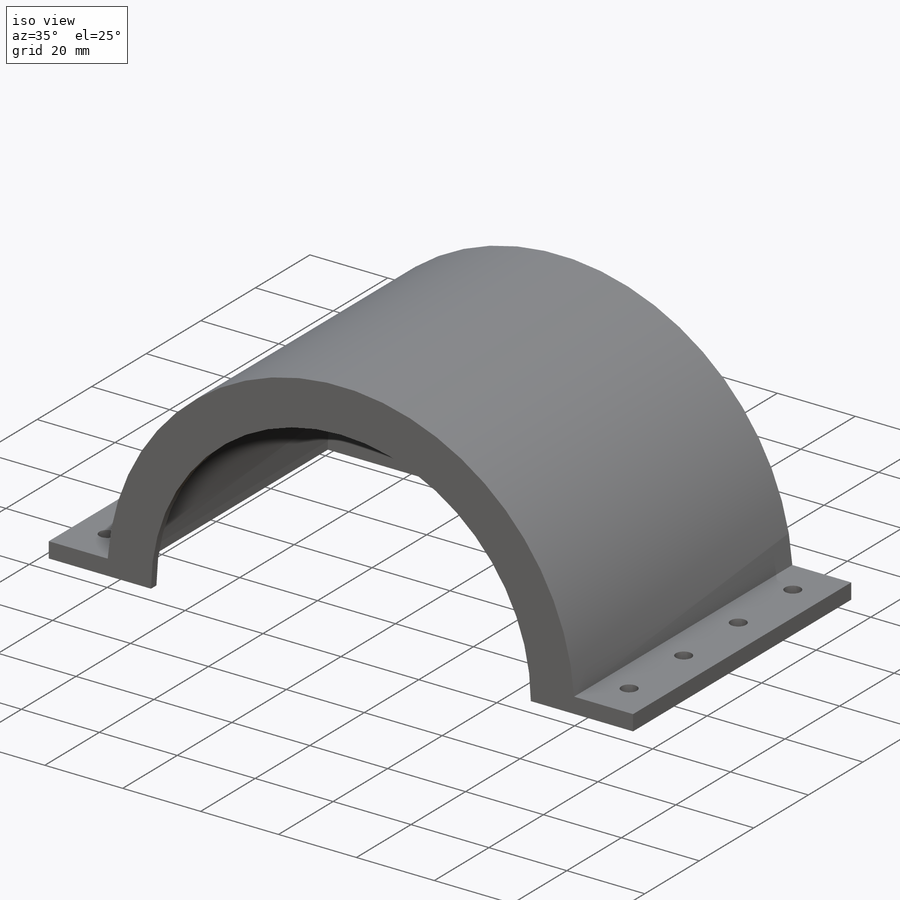
[diagram: iso view]
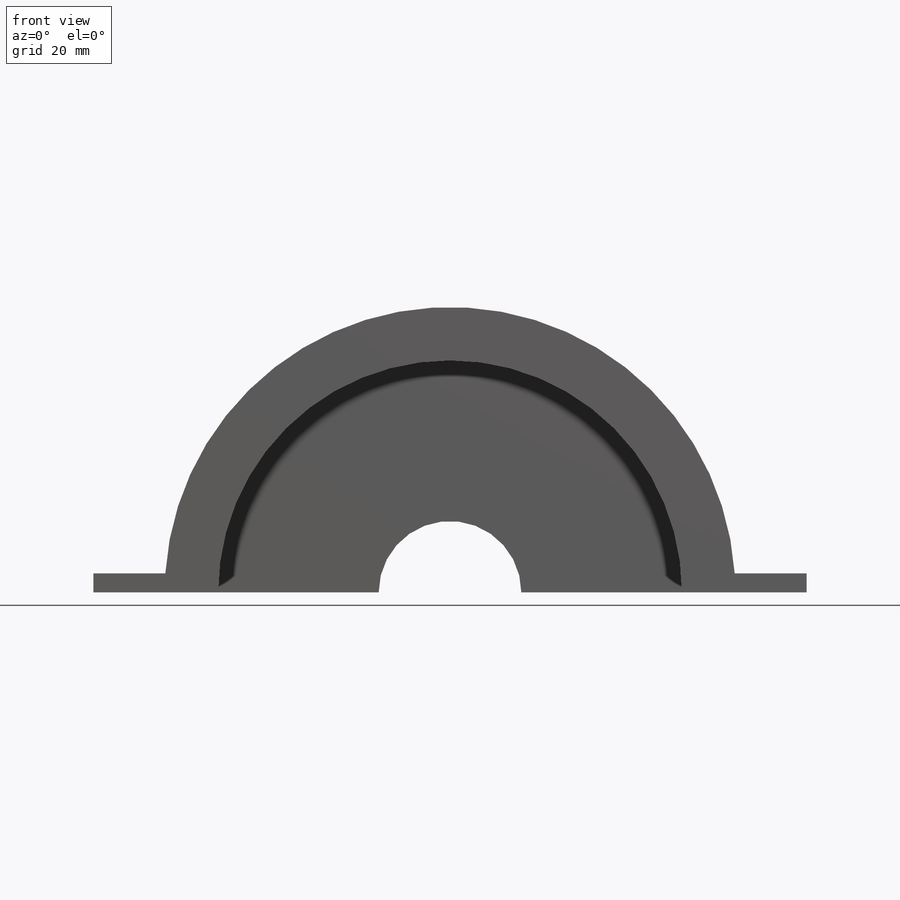
[diagram: front view]
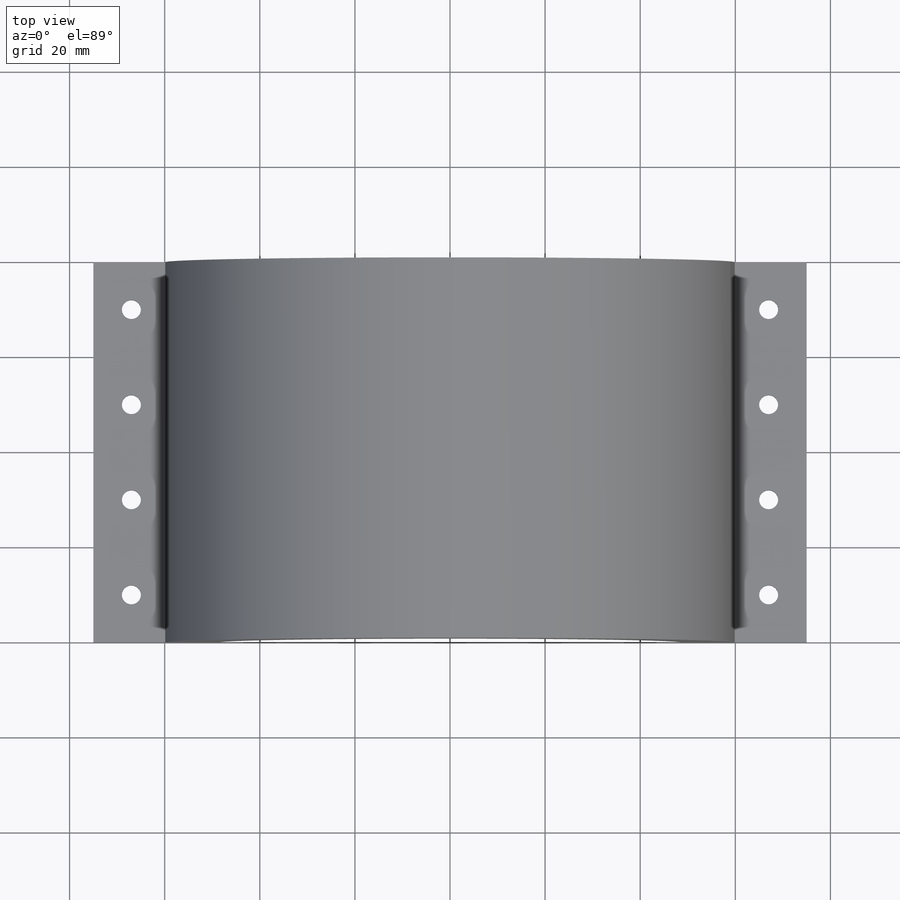
[diagram: top view]
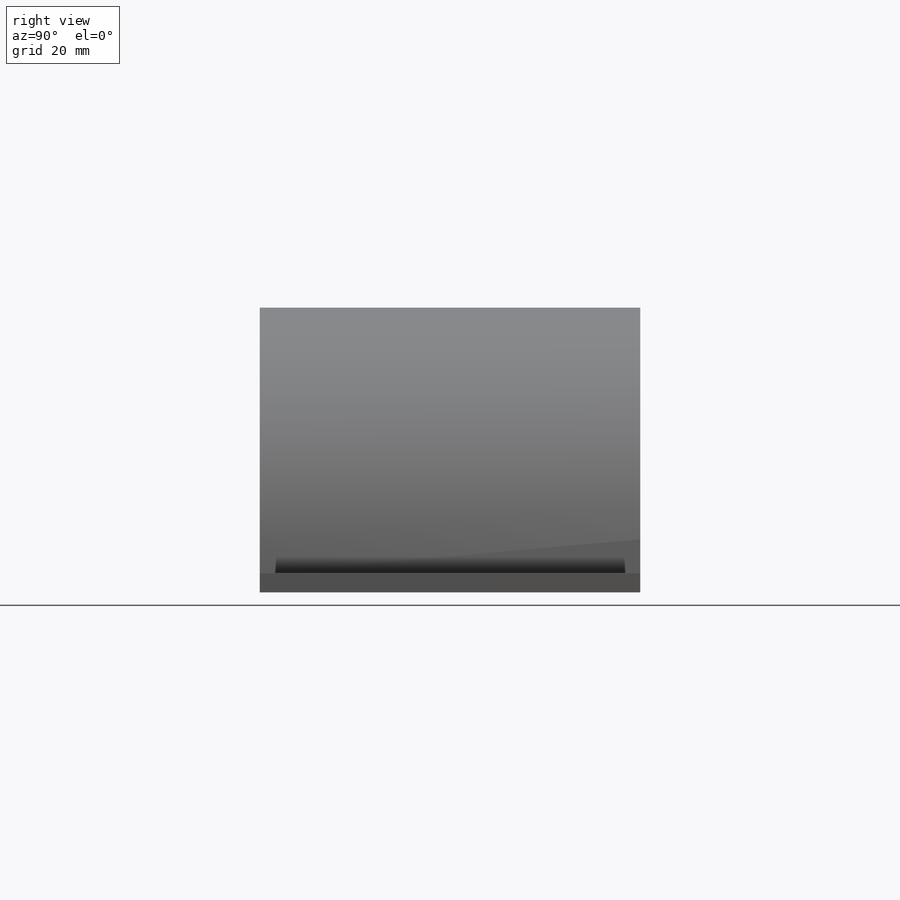
[diagram: right view]
SOLIDWORKS PART (.sldprt)
format: sldprt  version: not decoded by parser v0  size: 296,448 bytes
history: native  units: mm
features: sketch x8, cut_extrude x3, plane x3, extrude x2, material x1, shell x1, pattern_linear x1, mirror x1 (+11 scaffold rows collapsed)
feature tree (31):
  scaffold x11  (default folders/planes/origin — collapsed)
  material  "Material <not specified>"
  sketch  "Sketch1"  dims[c1.D1=120.0mm c1.D2=~157.703993mm c1.D3=~73.104243mm c2.D2=75.0mm c2.D4=4.0mm c2.D5=~15.133482mm c2.D6=~0.293396mm]
  extrude  "Boss-Extrude1"  Depth=80mm
  shell  "Shell1"  Thickness=2mm
  sketch  "Sketch2"  dims[c1.D1=76.0mm c1.D2=~15.034493mm c2.D1=76.0mm c2.D2=~15.034493mm c2.D3=~1.752436mm c2.D4=~0.302144mm c3.D3=~82.802439mm c3.D4=~34.644162mm c4.D3=76.0mm c4.D4=~15.087666mm c5.D3=76.0mm c5.D4=~15.087666mm]
  extrude  "Boss-Extrude2"  [1 undecoded]
  sketch  "Sketch3"  dims[D2=97.5mm D1=~164.448367mm]
  cut_extrude  "Cut-Extrude1"  [1 undecoded]
  sketch  "Sketch5"  dims[D1=30.0mm D2=30.0mm D3=~38.613747mm]
  cut_extrude  "Cut-Extrude2"  [1 undecoded]
  sketch  "Sketch6"  dims[c1.D3=4.0mm c1.D1=10.0mm c1.D2=~13.407389mm c1.D4=67.0mm c1.D5=70.0mm c2.D2=8.0mm]
  cut_extrude  "Cut-Extrude6"  [1 undecoded]
  pattern_linear  "LPattern1"  Count1=4 Count2=1 Spacing1=20mm Spacing2=10mm
  plane  "Plane1"  Offset=75mm
  mirror  "Mirror1"
  plane  "Plane2"  Offset=81.5mm
  sketch  "Sketch8"  dims[c1.D1=15.0mm c1.D2=15.0mm c1.D3=15.0mm c1.D4=15.0mm c2.D1=~31.945979mm c2.D2=28.75mm c2.D3=42.0mm c2.D4=28.75mm c2.D5=~24.196396mm c3.D4=62.0mm c3.D5=62.0mm c3.D6=42.0mm c3.D7=57.5mm c4.D5=11.25mm c4.D6=40.0mm c4.D7=68.75mm c5.D5=62.0mm c5.D6=~97.333333mm c5.D7=40.0mm c5.D8=27.5mm c6.D5=~55.333333mm]
  plane  "Plane3"  Offset=40mm
  sketch  "Sketch10"  dims[c1.D1=60.0mm c1.D2=~31.548101mm c2.D1=~41.588988mm c2.D2=~39.911012mm c3.D1=~97.333333mm]
  sketch  "Sketch11"  dims[c1.D1=~35.300612mm c1.D2=58.0mm c2.D1=~57.870968mm c2.D2=~0.444501mm]
decode coverage: 11 of 16 modeling features carry decoded parameters
note: ~ marks probable driven/reference dimensions
note: 4 parameter values undecoded
summary: no parameter record found for 4 features
note: suppression state not decoded; provenance and decode notes live in map.json
